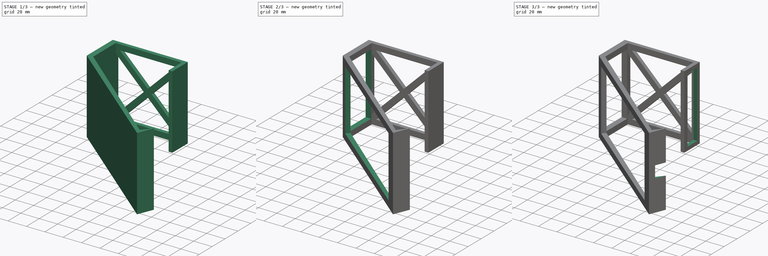
[diagram: build sequence overview — one tinted view per stage of 3, left to right]
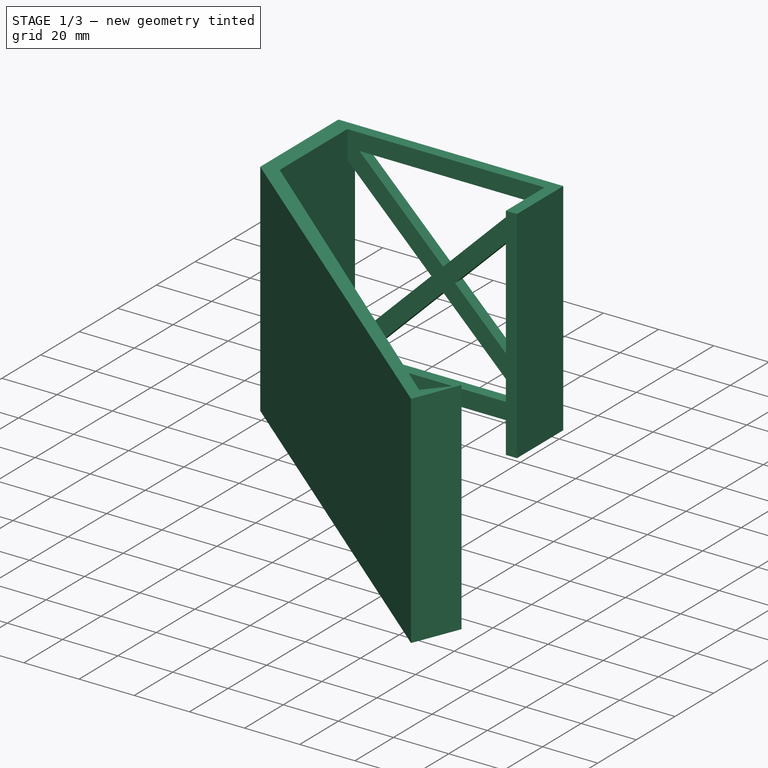
[diagram: stage 1 of 3 — iso view after this stage's code; geometry added in this stage tinted green]
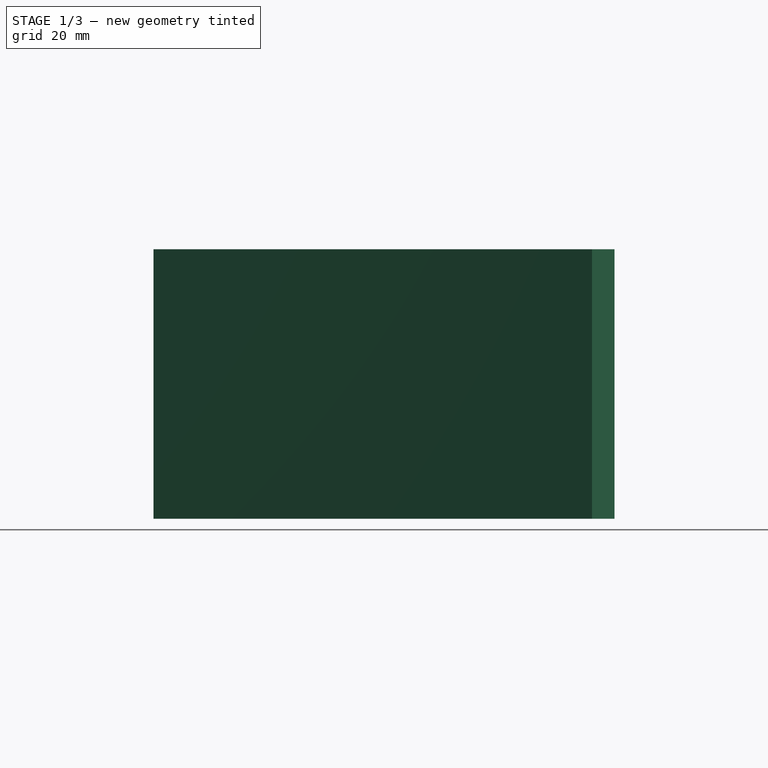
[diagram: stage 1 of 3 — front view after this stage's code; geometry added in this stage tinted green]
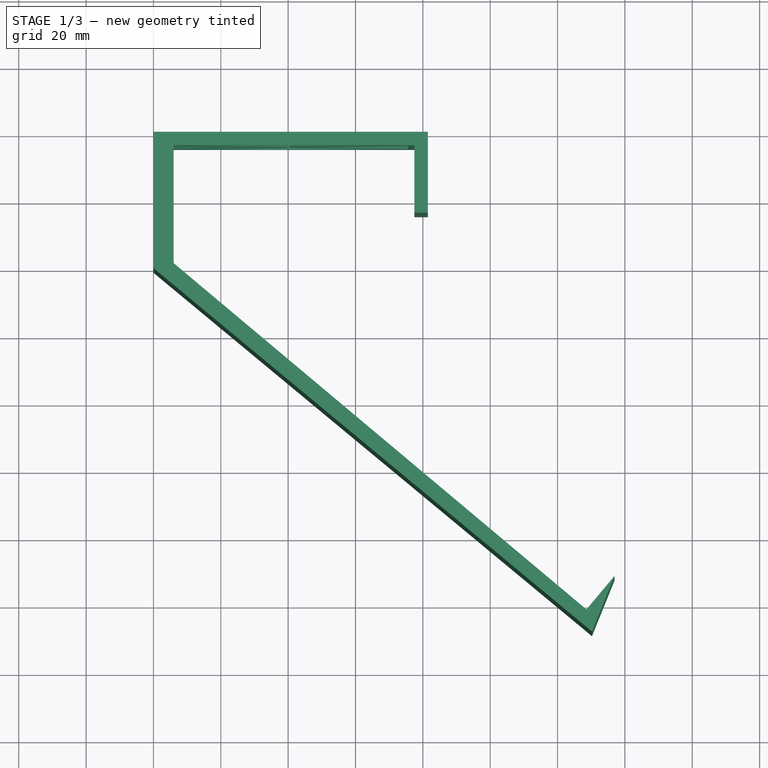
[diagram: stage 1 of 3 — top view after this stage's code; geometry added in this stage tinted green]
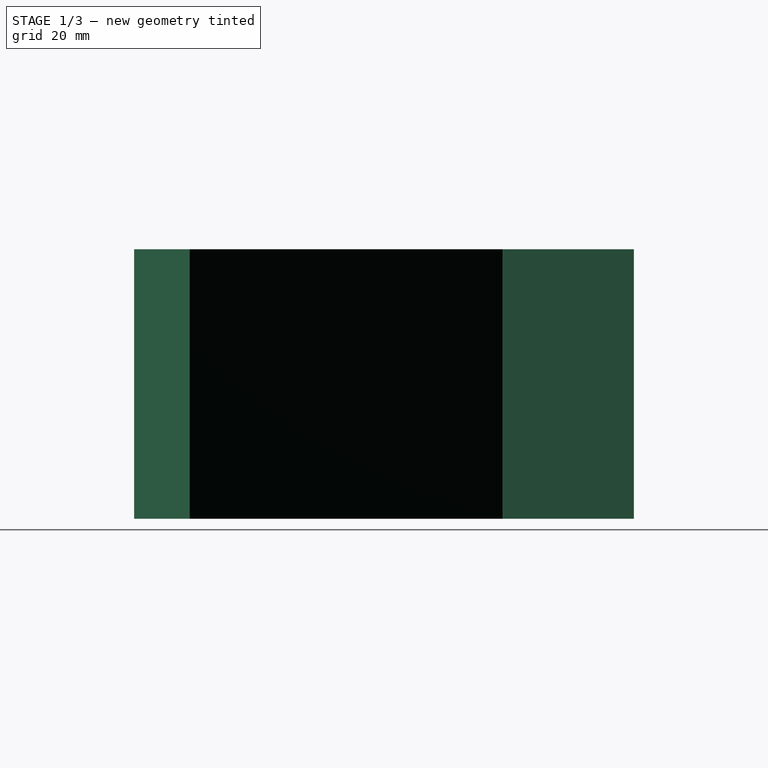
[diagram: stage 1 of 3 — right view after this stage's code; geometry added in this stage tinted green]
FCSTD DOCUMENT  (FreeCAD 0.19R24267 +99 (Git))
Label: Supportframe
License: All rights reserved
LicenseURL: http://en.wikipedia.org/wiki/All_rights_reserved
objects: Sketcher::SketchObject×6, PartDesign::Pocket×5, PartDesign::Pad×1, PartDesign::Body×1
note: 19 computed .brp shape members not serialized (recipe doc carries the construction recipe); baked Part::Feature solids carry a one-line shape summary decoded from their .brp

FEATURE [Sketcher::SketchObject] Sketch
  FullyConstrained = true
  MapMode = 5
  Support = -> [XY_Plane]
  sketch-geometry (11):
    g0: LineSegment StartX=0 StartY=0 StartZ=0 EndX=81.5 EndY=0 EndZ=0
    g1: LineSegment StartX=81.5 StartY=0 StartZ=0 EndX=81.5 EndY=-24 EndZ=0
    g2: LineSegment StartX=81.5 StartY=-24 StartZ=0 EndX=77.5 EndY=-24 EndZ=0
    g3: LineSegment StartX=77.5 StartY=-24 StartZ=0 EndX=77.5 EndY=-4 EndZ=0
    g4: LineSegment StartX=77.5 StartY=-4 StartZ=0 EndX=6 EndY=-4 EndZ=0
    g5: LineSegment StartX=6 StartY=-4 StartZ=0 EndX=6 EndY=-39 EndZ=0
    g6: LineSegment StartX=6 StartY=-39 StartZ=0 EndX=128.567 EndY=-141.846 EndZ=0
    g7: LineSegment StartX=128.567 StartY=-141.846 StartZ=0 EndX=136.923 EndY=-131.887 EndZ=0
    g8: LineSegment StartX=136.923 StartY=-131.887 StartZ=0 EndX=130.22 EndY=-148.411 EndZ=0
    g9: LineSegment StartX=130.22 StartY=-148.411 StartZ=0 EndX=0 EndY=-40.4924 EndZ=0
    g10: LineSegment StartX=0 StartY=-40.4924 StartZ=0 EndX=0 EndY=0 EndZ=0
  constraints (32):
    c: Horizontal(g0)
    c: Coincident(g0,g-1)
    c: Coincident(g0,g1)
    c: Vertical(g1)
    c: Coincident(g1,g2)
    c: Horizontal(g2)
    c: Coincident(g2,g3)
    c: Vertical(g3)
    c: Coincident(g3,g4)
    c: Horizontal(g4)
    c: Coincident(g4,g5)
    c: Vertical(g5)
    c: Coincident(g5,g6)
    c: Coincident(g6,g7)
    c: Coincident(g7,g8)
    c: Coincident(g8,g9)
    c: PointOnObject(g9,g-2)
    c: Coincident(g9,g10)
    c: Coincident(g10,g0)
    c: Distance(g4) = 71.5
    c: Distance(g2) = 4
    c: Distance(g4,g0) = 4
    c: Distance(g9,g6) = 5
    c: Distance(g6) = 160
    c: Distance(g4,g10) = 6
    c: Distance(g3) = 20
    c: Distance(g5) = 35
    c: Perpendicular(g6,g7)
    c: Distance(g6,g9) = 4
    c: Distance(g6,g8) = 4
    c: Distance(g7) = 13
    c: Angle(g6,g5) = 2.26893
FEATURE [PartDesign::Pad] Pad
  Direction = (1,1,1)
  Length = 80
  Length2 = 100
  Profile = -> Sketch
  Type = 0
FEATURE [Sketcher::SketchObject] Sketch001
  ExternalGeometry = -> [Pad]
  FullyConstrained = true
  MapMode = 5
  Placement = pos=(0,0,0) rot=(0,0.707107,0.707107;3.14159rad)
  Support = -> [Pad]
  sketch-geometry (14):
    g0: LineSegment StartX=-81.5 StartY=80 StartZ=0 EndX=0 EndY=0 EndZ=0
    g1: LineSegment StartX=0 StartY=80 StartZ=0 EndX=-81.5 EndY=0 EndZ=0
    g2: LineSegment StartX=-40.75 StartY=35.7962 StartZ=0 EndX=-71.1049 EndY=6 EndZ=0
    g3: LineSegment StartX=-71.1049 StartY=6 StartZ=0 EndX=-10.3951 EndY=6 EndZ=0
    g4: LineSegment StartX=-10.3951 StartY=6 StartZ=0 EndX=-40.75 EndY=35.7962 EndZ=0
    g5: LineSegment StartX=-75.5 StartY=69.9067 StartZ=0 EndX=-75.5 EndY=10.0933 EndZ=0
    g6: LineSegment StartX=-75.5 StartY=10.0933 StartZ=0 EndX=-45.0326 EndY=40 EndZ=0
    g7: LineSegment StartX=-45.0326 StartY=40 StartZ=0 EndX=-75.5 EndY=69.9067 EndZ=0
    g8: LineSegment StartX=-71.1049 StartY=74 StartZ=0 EndX=-40.75 EndY=44.2038 EndZ=0
    g9: LineSegment StartX=-40.75 StartY=44.2038 StartZ=0 EndX=-10.3951 EndY=74 EndZ=0
    g10: LineSegment StartX=-10.3951 StartY=74 StartZ=0 EndX=-71.1049 EndY=74 EndZ=0
    g11: LineSegment StartX=-6 StartY=69.9067 StartZ=0 EndX=-6 EndY=10.0933 EndZ=0
    g12: LineSegment StartX=-6 StartY=10.0933 StartZ=0 EndX=-36.4674 EndY=40 EndZ=0
    g13: LineSegment StartX=-36.4674 StartY=40 StartZ=0 EndX=-6 EndY=69.9067 EndZ=0
  constraints (40):
    c: Coincident(g1,g-4)
    c: Coincident(g-3,g1)
    c: Coincident(g0,g-1)
    c: Coincident(g0,g-3)
    c: Coincident(g2,g3)
    c: Horizontal(g3)
    c: Coincident(g3,g4)
    c: Coincident(g4,g2)
    c: Parallel(g4,g0)
    c: Parallel(g2,g1)
    c: Distance(g2,g1) = 3
    c: Distance(g2,g0) = 3
    c: Distance(g3,g-4) = 6
    c: Vertical(g5)
    c: Coincident(g5,g6)
    c: Coincident(g6,g7)
    c: Coincident(g7,g5)
    c: Coincident(g8,g9)
    c: Coincident(g9,g10)
    c: Coincident(g10,g8)
    c: Horizontal(g10)
    c: Vertical(g11)
    c: Coincident(g11,g12)
    c: Coincident(g12,g13)
    c: Coincident(g13,g11)
    c: Parallel(g0,g7)
    c: Parallel(g0,g8)
    c: Parallel(g9,g1)
    c: Parallel(g13,g1)
    c: Parallel(g12,g0)
    c: Distance(g8,g1) = 3
    c: Distance(g8,g0) = 3
    c: Distance(g6,g0) = 3
    c: Distance(g6,g1) = 3
    c: Distance(g12,g0) = 3
    c: Distance(g12,g1) = 3
    c: Distance(g11,g-2) = 6
    c: Distance(g9,g-3) = 6
    c: Distance(g5,g1) = 3
    c: Distance(g5,g-5) = 6
FEATURE [PartDesign::Pocket] Pocket
  BaseFeature = -> Pad
  Length = 5
  Length2 = 100
  Profile = -> Sketch001
  Type = 0
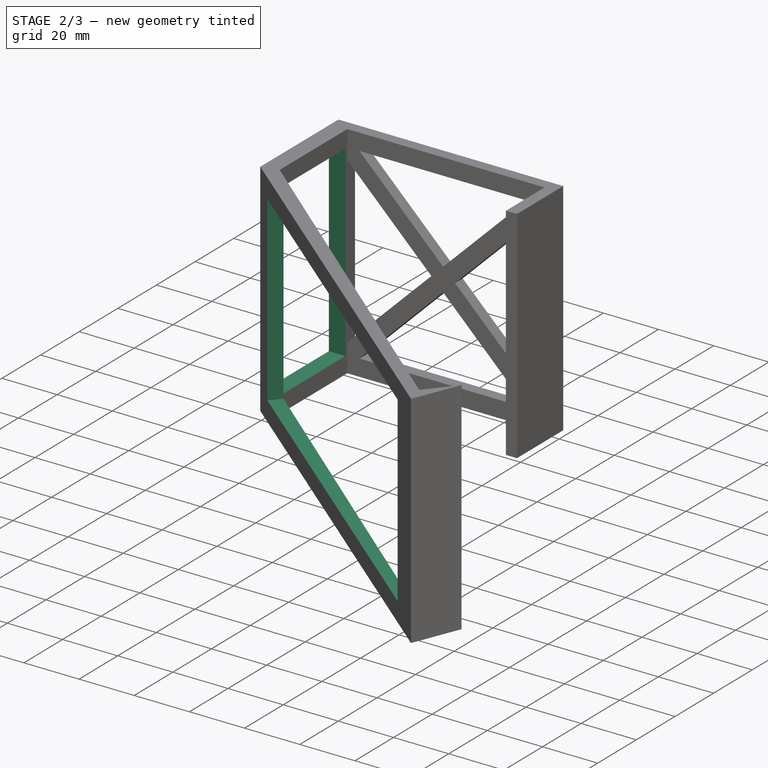
[diagram: stage 2 of 3 — iso view after this stage's code; geometry added in this stage tinted green]
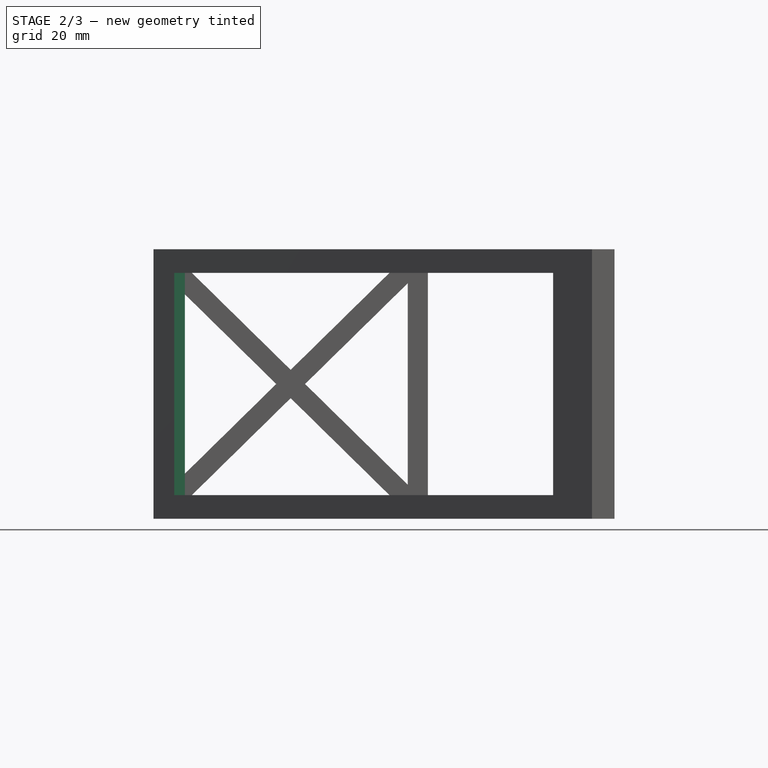
[diagram: stage 2 of 3 — front view after this stage's code; geometry added in this stage tinted green]
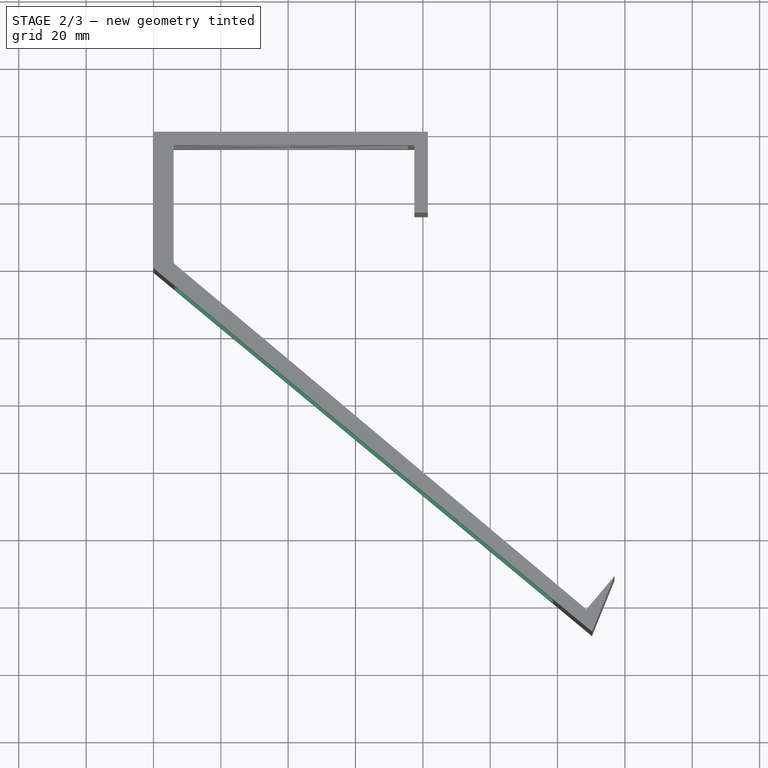
[diagram: stage 2 of 3 — top view after this stage's code; geometry added in this stage tinted green]
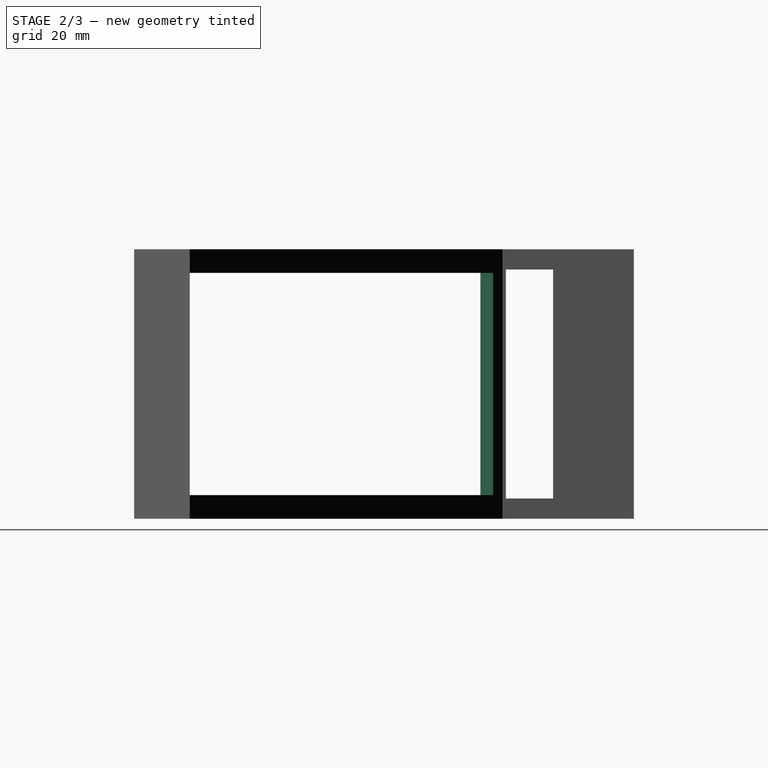
[diagram: stage 2 of 3 — right view after this stage's code; geometry added in this stage tinted green]
FEATURE [Sketcher::SketchObject] Sketch002
  ExternalGeometry = -> [Pocket]
  FullyConstrained = true
  MapMode = 5
  Placement = pos=(6,0,0) rot=(0.57735,0.57735,0.57735;2.0944rad)
  Support = -> [Pocket]
  sketch-geometry (4):
    g0: LineSegment StartX=-38 StartY=74 StartZ=0 EndX=-5 EndY=74 EndZ=0
    g1: LineSegment StartX=-5 StartY=74 StartZ=0 EndX=-5 EndY=6 EndZ=0
    g2: LineSegment StartX=-5 StartY=6 StartZ=0 EndX=-38 EndY=6 EndZ=0
    g3: LineSegment StartX=-38 StartY=6 StartZ=0 EndX=-38 EndY=74 EndZ=0
  constraints (12):
    c: Coincident(g0,g1)
    c: Coincident(g1,g2)
    c: Coincident(g2,g3)
    c: Coincident(g3,g0)
    c: Horizontal(g0)
    c: Horizontal(g2)
    c: Vertical(g1)
    c: Vertical(g3)
    c: Distance(g0,g-3) = 1
    c: Distance(g2,g-1) = 6
    c: Distance(g0,g-4) = 1
    c: Distance(g0,g-6) = 6
FEATURE [PartDesign::Pocket] Pocket001
  BaseFeature = -> Pocket
  Length = 9
  Length2 = 100
  Profile = -> Sketch002
  Type = 0
FEATURE [Sketcher::SketchObject] Sketch003
  ExternalGeometry = -> [Pocket001]
  FullyConstrained = true
  MapMode = 5
  Placement = pos=(-19.8942,-24.0053,0) rot=(0.890892,-0.321179,-0.321179;1.68607rad)
  Support = -> [Pocket001]
  sketch-geometry (4):
    g0: LineSegment StartX=33.838 StartY=73 StartZ=0 EndX=179.965 EndY=73 EndZ=0
    g1: LineSegment StartX=179.965 StartY=73 StartZ=0 EndX=179.965 EndY=7 EndZ=0
    g2: LineSegment StartX=179.965 StartY=7 StartZ=0 EndX=33.838 EndY=7 EndZ=0
    g3: LineSegment StartX=33.838 StartY=7 StartZ=0 EndX=33.838 EndY=73 EndZ=0
  constraints (12):
    c: Coincident(g0,g1)
    c: Coincident(g1,g2)
    c: Coincident(g2,g3)
    c: Coincident(g3,g0)
    c: Horizontal(g0)
    c: Horizontal(g2)
    c: Vertical(g1)
    c: Vertical(g3)
    c: Distance(g2,g-1) = 7
    c: Distance(g0,g-3) = 7
    c: Distance(g2,g-4) = 8
    c: Distance(g0,g-5) = 15
FEATURE [PartDesign::Pocket] Pocket002
  BaseFeature = -> Pocket001
  Length = 5
  Length2 = 100
  Profile = -> Sketch003
  Type = 0
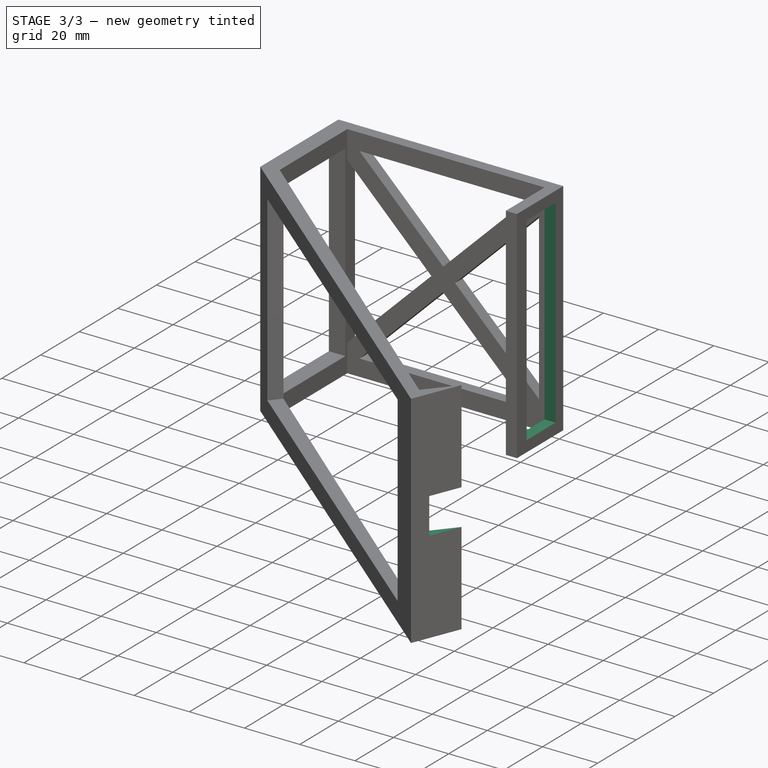
[diagram: stage 3 of 3 — iso view after this stage's code; geometry added in this stage tinted green]
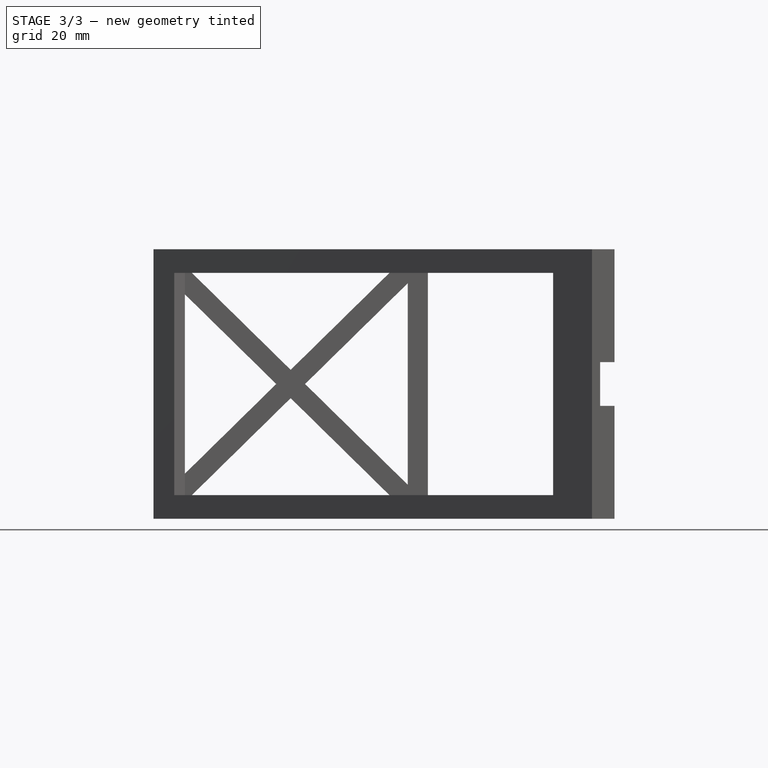
[diagram: stage 3 of 3 — front view after this stage's code; geometry added in this stage tinted green]
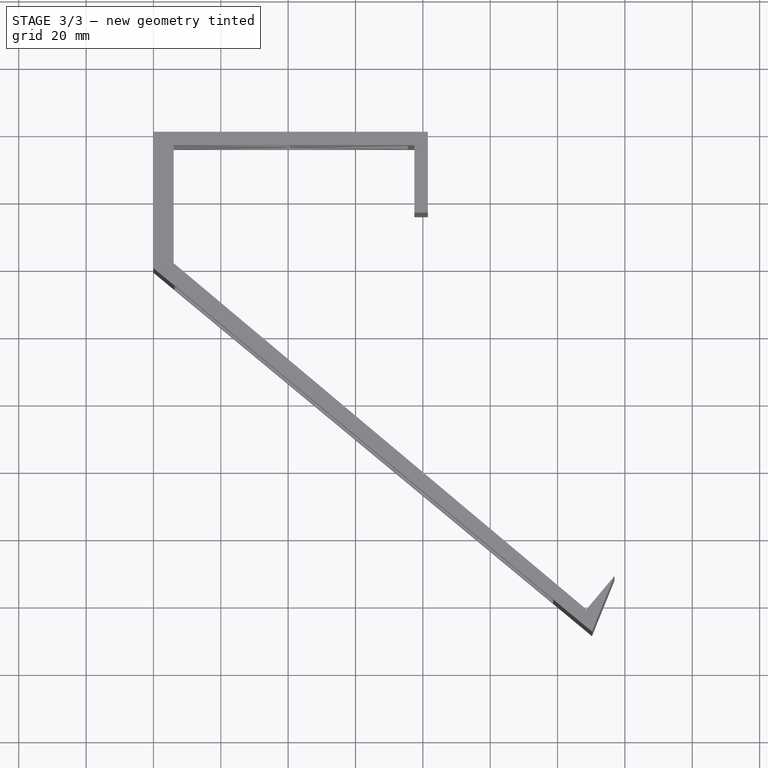
[diagram: stage 3 of 3 — top view after this stage's code; geometry added in this stage tinted green]
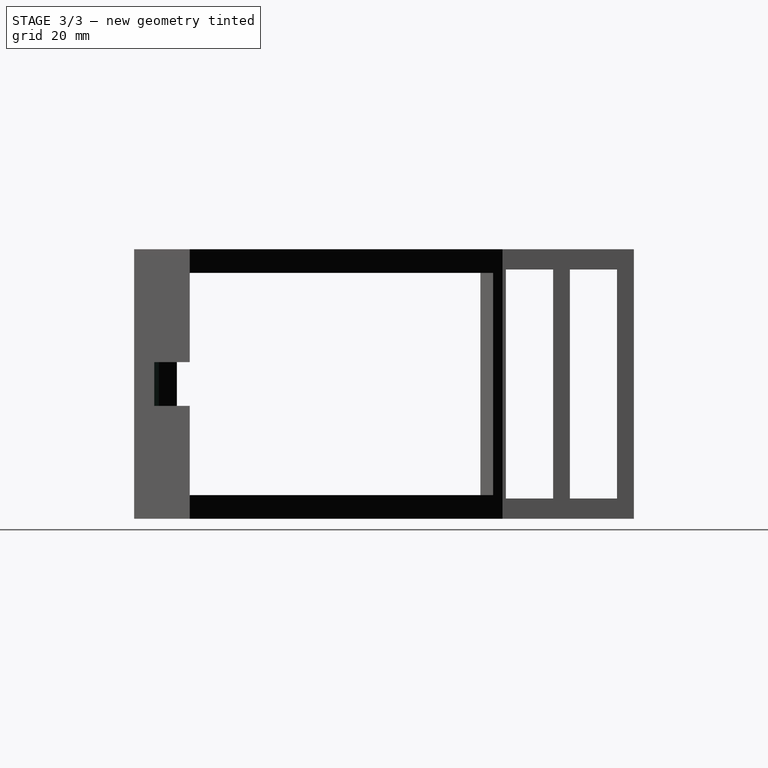
[diagram: stage 3 of 3 — right view after this stage's code; geometry added in this stage tinted green]
FEATURE [Sketcher::SketchObject] Sketch004
  ExternalGeometry = -> [Pocket002]
  FullyConstrained = true
  MapMode = 5
  Placement = pos=(81.5,0,0) rot=(0.57735,0.57735,0.57735;2.0944rad)
  Support = -> [Pocket002]
  sketch-geometry (4):
    g0: LineSegment StartX=-19 StartY=76 StartZ=0 EndX=-4 EndY=76 EndZ=0
    g1: LineSegment StartX=-4 StartY=76 StartZ=0 EndX=-4 EndY=4 EndZ=0
    g2: LineSegment StartX=-4 StartY=4 StartZ=0 EndX=-19 EndY=4 EndZ=0
    g3: LineSegment StartX=-19 StartY=4 StartZ=0 EndX=-19 EndY=76 EndZ=0
  constraints (12):
    c: Coincident(g0,g1)
    c: Coincident(g1,g2)
    c: Coincident(g2,g3)
    c: Coincident(g3,g0)
    c: Horizontal(g0)
    c: Horizontal(g2)
    c: Vertical(g1)
    c: Vertical(g3)
    c: Distance(g0,g-2) = 4
    c: Distance(g1,g-1) = 4
    c: Distance(g0,g-3) = 4
    c: Distance(g0,g-4) = 5
FEATURE [PartDesign::Pocket] Pocket003
  BaseFeature = -> Pocket002
  Length = 5
  Length2 = 100
  Profile = -> Sketch004
  Type = 0
FEATURE [Sketcher::SketchObject] Sketch005
  ExternalGeometry = -> [Pocket003]
  FullyConstrained = true
  MapMode = 5
  Placement = pos=(163.517,-66.33,0) rot=(0.724107,0.487683,0.487683;1.88815rad)
  Support = -> [Pocket003]
  sketch-geometry (7):
    g0: LineSegment StartX=-82.1152 StartY=46.5 StartZ=0 EndX=-62.1152 EndY=46.5 EndZ=0
    g1: LineSegment StartX=-62.1152 StartY=46.5 StartZ=0 EndX=-62.1152 EndY=33.5 EndZ=0
    g2: LineSegment StartX=-62.1152 StartY=33.5 StartZ=0 EndX=-82.1152 EndY=33.5 EndZ=0
    g3: LineSegment StartX=-82.1152 StartY=33.5 StartZ=0 EndX=-82.1152 EndY=46.5 EndZ=0
    g4: LineSegment StartX=-82.1152 StartY=46.5 StartZ=0 EndX=-62.1152 EndY=33.5 EndZ=0
    g5: LineSegment StartX=-62.1152 StartY=46.5 StartZ=0 EndX=-82.1152 EndY=33.5 EndZ=0
    g6: GeomPoint X=-72.1152 Y=40 Z=0
  constraints (19):
    c: Coincident(g0,g1)
    c: Coincident(g1,g2)
    c: Coincident(g2,g3)
    c: Coincident(g3,g0)
    c: Horizontal(g0)
    c: Horizontal(g2)
    c: Vertical(g1)
    c: Vertical(g3)
    c: Distance(g1) = 13
    c: Distance(g0) = 20
    c: Coincident(g4,g0)
    c: Coincident(g4,g1)
    c: Coincident(g5,g0)
    c: Coincident(g5,g2)
    c: PointOnObject(g6,g4)
    c: PointOnObject(g6,g5)
    c: DistanceY(g6,g-3) = 40
    c: Distance(g-3) = 80
    c: Distance(g0,g-4) = 1
FEATURE [PartDesign::Pocket] Pocket004
  BaseFeature = -> Pocket003
  Length = 5
  Length2 = 100
  Profile = -> Sketch005
  Type = 0
FEATURE [PartDesign::Body] Body
  Group = -> [Sketch,Pad,Sketch001,Pocket,Sketch002,Pocket001,Sketch003,Pocket002,Sketch004,Pocket003,Sketch005,Pocket004]
  Origin = -> Origin
  Tip = -> Pocket004
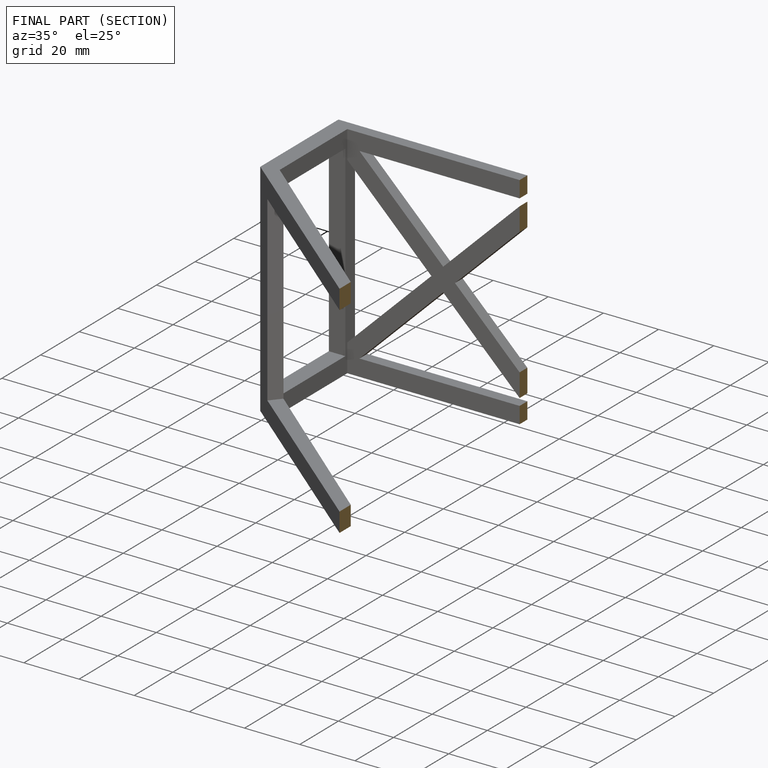
[diagram: finished part — half-section view (interior)]
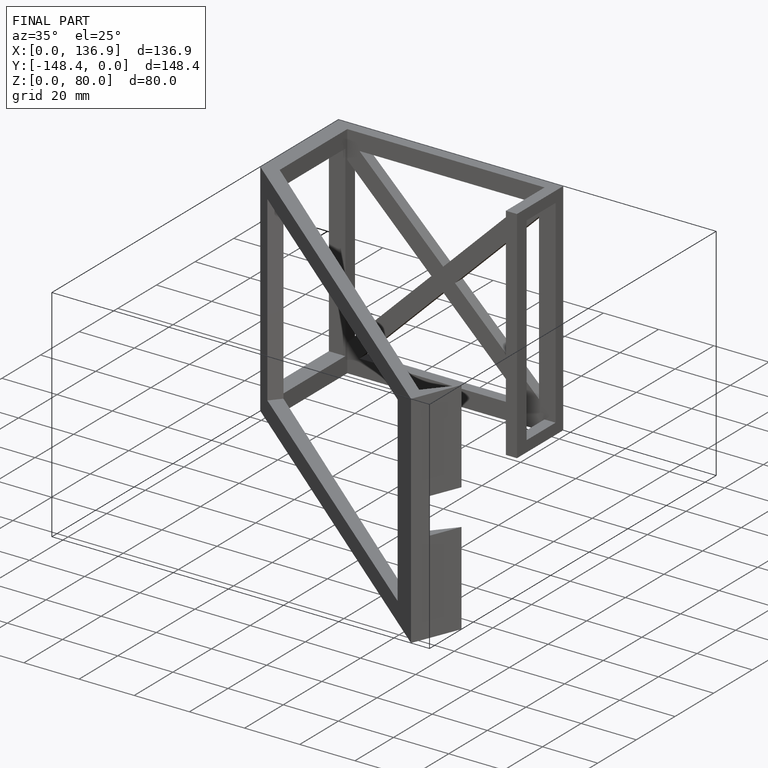
[diagram: finished part — iso view with bounding-box wireframe]
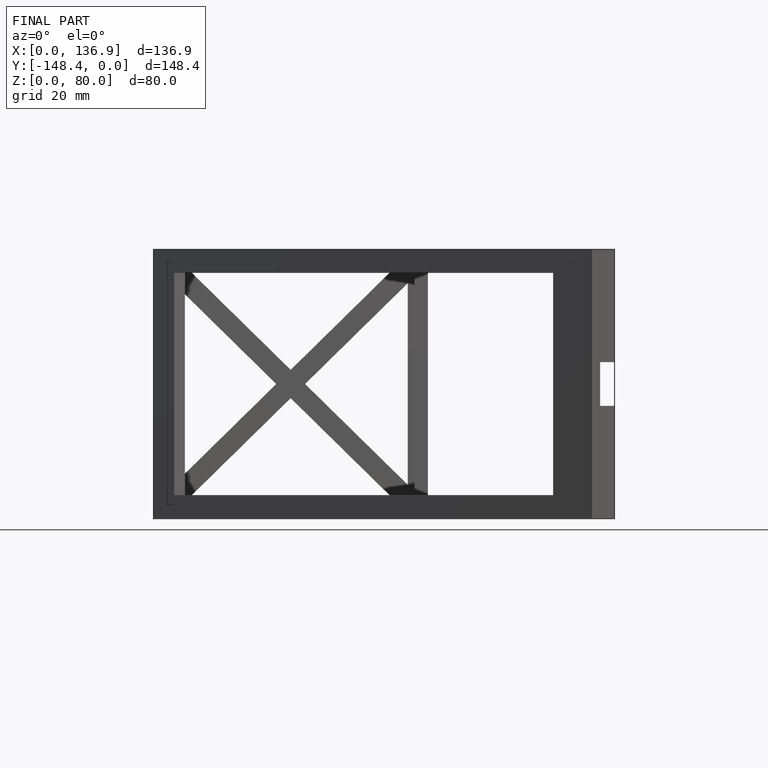
[diagram: finished part — front view with bounding-box wireframe]
